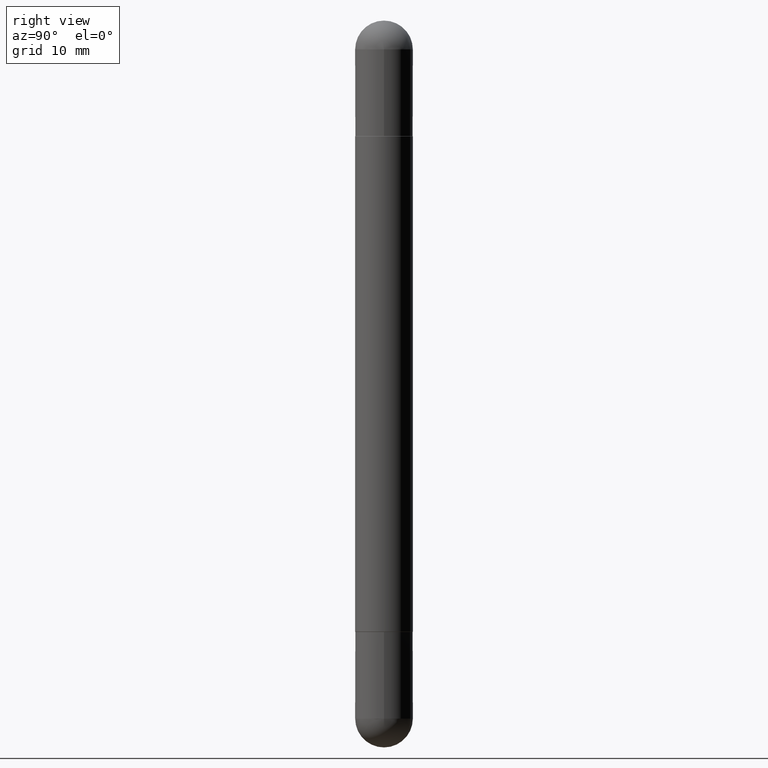
[diagram: clean part render]
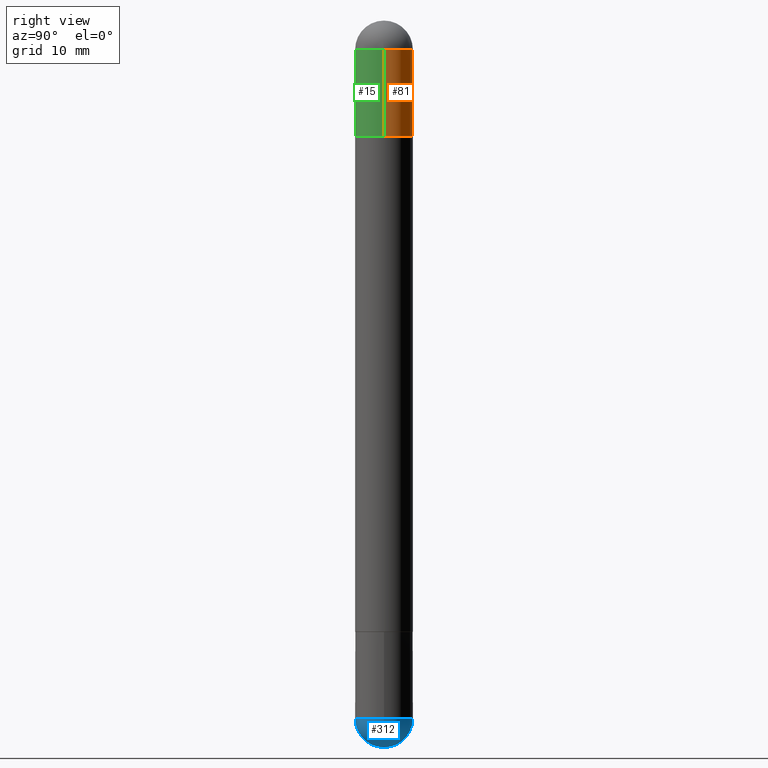
[diagram: same view with three faces highlighted in distinct colors, each labeled with its STEP entity id]
A machine part, right view with three faces highlighted in distinct colors.
Their STEP definitions:

[orange] entity #81 — the highlighted cylindrical surface (edge-blend (fillet) strip) has radius 2.5006 mm, axis along (-0, 0, -1).
#1 = DIRECTION ( 'NONE',  ( 1.000000000000000000, -6.982962677686273810E-15, 0.000000000000000000 ) ) ;
#39 = ORIENTED_EDGE ( 'NONE', *, *, #149, .F. ) ;
#54 = DIRECTION ( 'NONE',  ( 1.000000000000000000, -6.982962677686266711E-15, 0.000000000000000000 ) ) ;
#81 = ADVANCED_FACE ( 'NONE', ( #239 ), #479, .T. ) ;
#97 = AXIS2_PLACEMENT_3D ( 'NONE', #416, #598, #54 ) ;
#127 = AXIS2_PLACEMENT_3D ( 'NONE', #408, #647, #474 ) ;
#147 = EDGE_LOOP ( 'NONE', ( #39, #586, #335, #405, #495 ) ) ;
#149 = EDGE_CURVE ( 'NONE', #439, #744, #483, .T. ) ;
#152 = VECTOR ( 'NONE', #382, 39.37007874015748143 ) ;
#197 = CARTESIAN_POINT ( 'NONE',  ( 0.09845000000000000973, -8.488227569895042768E-15, -0.09844999999999987095 ) ) ;
#223 = CARTESIAN_POINT ( 'NONE',  ( 6.874726756182700483E-16, 0.09844999999999154427, -0.09844999999999953788 ) ) ;
#239 = FACE_OUTER_BOUND ( 'NONE', #147, .T. ) ;
#283 = CARTESIAN_POINT ( 'NONE',  ( 5.102715210985907397E-29, -7.285324961630108994E-15, -0.3936999999999999389 ) ) ;
#318 = LINE ( 'NONE', #753, #152 ) ;
#335 = ORIENTED_EDGE ( 'NONE', *, *, #813, .F. ) ;
#347 = VERTEX_POINT ( 'NONE', #197 ) ;
#351 = AXIS2_PLACEMENT_3D ( 'NONE', #283, #780, #444 ) ;
#355 = EDGE_CURVE ( 'NONE', #514, #744, #410, .T. ) ;
#382 = DIRECTION ( 'NONE',  ( -2.445468806185136877E-29, 3.491481338843145188E-15, -1.000000000000000000 ) ) ;
#405 = ORIENTED_EDGE ( 'NONE', *, *, #749, .T. ) ;
#408 = CARTESIAN_POINT ( 'NONE',  ( 5.824739876012068780E-29, -8.316184826923546689E-15, -0.09844999999999987095 ) ) ;
#410 = CIRCLE ( 'NONE', #351, 0.09844999999999999585 ) ;
#412 = CIRCLE ( 'NONE', #127, 0.09845000000000000973 ) ;
#416 = CARTESIAN_POINT ( 'NONE',  ( 0.000000000000000000, 0.000000000000000000, -2.480300000000000171 ) ) ;
#424 = AXIS2_PLACEMENT_3D ( 'NONE', #432, #679, #1 ) ;
#432 = CARTESIAN_POINT ( 'NONE',  ( 5.824739876012068780E-29, -8.316184826923546689E-15, -0.09844999999999987095 ) ) ;
#439 = VERTEX_POINT ( 'NONE', #643 ) ;
#444 = DIRECTION ( 'NONE',  ( 1.000000000000000000, -6.982962677686265922E-15, 0.000000000000000000 ) ) ;
#453 = CARTESIAN_POINT ( 'NONE',  ( 0.09844999999999999585, -7.972797637248321554E-15, -0.3936999999999999389 ) ) ;
#474 = DIRECTION ( 'NONE',  ( 1.000000000000000000, -6.982962677686273810E-15, 0.000000000000000000 ) ) ;
#479 = CYLINDRICAL_SURFACE ( 'NONE', #97, 0.09845000000000000973 ) ;
#483 = LINE ( 'NONE', #534, #667 ) ;
#495 = ORIENTED_EDGE ( 'NONE', *, *, #355, .T. ) ;
#514 = VERTEX_POINT ( 'NONE', #453 ) ;
#534 = CARTESIAN_POINT ( 'NONE',  ( -0.09845000000000000973, 6.754160278806074041E-16, -2.480300000000000171 ) ) ;
#547 = VERTEX_POINT ( 'NONE', #223 ) ;
#586 = ORIENTED_EDGE ( 'NONE', *, *, #688, .F. ) ;
#598 = DIRECTION ( 'NONE',  ( -2.445468806185136597E-29, 3.491481338843145583E-15, -1.000000000000000000 ) ) ;
#643 = CARTESIAN_POINT ( 'NONE',  ( -0.09845000000000000973, -7.125338866396221621E-15, -0.09844999999999987095 ) ) ;
#647 = DIRECTION ( 'NONE',  ( 2.445468806185136597E-29, -3.491481338843145583E-15, 1.000000000000000000 ) ) ;
#667 = VECTOR ( 'NONE', #727, 39.37007874015748143 ) ;
#679 = DIRECTION ( 'NONE',  ( 2.445468806185136597E-29, -3.491481338843145583E-15, 1.000000000000000000 ) ) ;
#688 = EDGE_CURVE ( 'NONE', #547, #439, #412, .T. ) ;
#727 = DIRECTION ( 'NONE',  ( -2.445468806185136877E-29, 3.491481338843145188E-15, -1.000000000000000000 ) ) ;
#744 = VERTEX_POINT ( 'NONE', #812 ) ;
#749 = EDGE_CURVE ( 'NONE', #347, #514, #318, .T. ) ;
#753 = CARTESIAN_POINT ( 'NONE',  ( 0.09845000000000000973, -6.874726756182130531E-16, -2.480300000000000171 ) ) ;
#770 = CIRCLE ( 'NONE', #424, 0.09845000000000000973 ) ;
#780 = DIRECTION ( 'NONE',  ( 2.445468806185136597E-29, -3.491481338843145583E-15, 1.000000000000000000 ) ) ;
#812 = CARTESIAN_POINT ( 'NONE',  ( -0.09844999999999999585, -7.125338866396220043E-15, -0.3936999999999999389 ) ) ;
#813 = EDGE_CURVE ( 'NONE', #347, #547, #770, .T. ) ;

[blue] entity #312 — the highlighted spherical surface has radius 2.5006 mm.
#13 = SPHERICAL_SURFACE ( 'NONE', #389, 0.09845000000000017626 ) ;
#19 = AXIS2_PLACEMENT_3D ( 'NONE', #58, #555, #384 ) ;
#33 = CARTESIAN_POINT ( 'NONE',  ( 5.824739876012068780E-29, -8.316184826923546689E-15, -2.381850000000000467 ) ) ;
#58 = CARTESIAN_POINT ( 'NONE',  ( 5.493620098098182533E-29, -8.790367195063598563E-15, -2.381850000000000467 ) ) ;
#62 = CIRCLE ( 'NONE', #507, 0.09845000000000000973 ) ;
#132 = DIRECTION ( 'NONE',  ( -2.445468806185136597E-29, 3.491481338843145583E-15, 1.000000000000000000 ) ) ;
#199 = EDGE_CURVE ( 'NONE', #658, #348, #62, .T. ) ;
#201 = DIRECTION ( 'NONE',  ( 1.000000000000000000, -6.982962677686273810E-15, 0.000000000000000000 ) ) ;
#240 = EDGE_CURVE ( 'NONE', #491, #658, #680, .T. ) ;
#264 = CIRCLE ( 'NONE', #524, 0.09845000000000017626 ) ;
#269 = DIRECTION ( 'NONE',  ( -1.000000000000000000, 6.982962677686265922E-15, -4.883557194083112901E-29 ) ) ;
#312 = ADVANCED_FACE ( 'NONE', ( #443 ), #13, .T. ) ;
#342 = CARTESIAN_POINT ( 'NONE',  ( -6.995293233557624958E-16, -0.09845000000000865559, -2.381850000000000023 ) ) ;
#348 = VERTEX_POINT ( 'NONE', #566 ) ;
#384 = DIRECTION ( 'NONE',  ( 6.982962677686265922E-15, 1.000000000000000000, 0.000000000000000000 ) ) ;
#389 = AXIS2_PLACEMENT_3D ( 'NONE', #624, #269, #761 ) ;
#411 = CARTESIAN_POINT ( 'NONE',  ( 5.493620098098182533E-29, -8.790367195063598563E-15, -2.381850000000000467 ) ) ;
#443 = FACE_OUTER_BOUND ( 'NONE', #631, .T. ) ;
#462 = ORIENTED_EDGE ( 'NONE', *, *, #648, .F. ) ;
#478 = DIRECTION ( 'NONE',  ( -1.000000000000000000, 7.105427357601001070E-15, -4.926315508542082329E-29 ) ) ;
#491 = VERTEX_POINT ( 'NONE', #342 ) ;
#507 = AXIS2_PLACEMENT_3D ( 'NONE', #33, #530, #789 ) ;
#508 = CIRCLE ( 'NONE', #19, 0.09845000000000017626 ) ;
#524 = AXIS2_PLACEMENT_3D ( 'NONE', #411, #478, #726 ) ;
#530 = DIRECTION ( 'NONE',  ( -2.445468806185136597E-29, 3.491481338843145583E-15, 1.000000000000000000 ) ) ;
#555 = DIRECTION ( 'NONE',  ( 1.000000000000000000, -6.982962677686265922E-15, 4.883557194083112340E-29 ) ) ;
#560 = CARTESIAN_POINT ( 'NONE',  ( 5.824739876012068780E-29, -8.316184826923546689E-15, -2.381850000000000467 ) ) ;
#566 = CARTESIAN_POINT ( 'NONE',  ( 6.874726756182700483E-16, 0.09844999999999154427, -2.381850000000000911 ) ) ;
#568 = ORIENTED_EDGE ( 'NONE', *, *, #240, .F. ) ;
#599 = VERTEX_POINT ( 'NONE', #717 ) ;
#611 = ORIENTED_EDGE ( 'NONE', *, *, #199, .F. ) ;
#624 = CARTESIAN_POINT ( 'NONE',  ( 5.493620098098182533E-29, -8.790367195063598563E-15, -2.381850000000000467 ) ) ;
#628 = AXIS2_PLACEMENT_3D ( 'NONE', #560, #132, #201 ) ;
#631 = EDGE_LOOP ( 'NONE', ( #462, #776, #611, #568 ) ) ;
#648 = EDGE_CURVE ( 'NONE', #599, #491, #264, .T. ) ;
#653 = CARTESIAN_POINT ( 'NONE',  ( 0.09845000000000000973, -8.488227569895042768E-15, -2.381850000000000467 ) ) ;
#658 = VERTEX_POINT ( 'NONE', #653 ) ;
#680 = CIRCLE ( 'NONE', #628, 0.09845000000000000973 ) ;
#717 = CARTESIAN_POINT ( 'NONE',  ( 5.738586058125595532E-29, -9.128075209003904434E-15, -2.480300000000001059 ) ) ;
#726 = DIRECTION ( 'NONE',  ( -7.105427357601001070E-15, -1.000000000000000000, 0.000000000000000000 ) ) ;
#761 = DIRECTION ( 'NONE',  ( 6.982962677686265922E-15, 1.000000000000000000, -2.774858297271973643E-15 ) ) ;
#776 = ORIENTED_EDGE ( 'NONE', *, *, #818, .T. ) ;
#789 = DIRECTION ( 'NONE',  ( 1.000000000000000000, -6.982962677686273810E-15, 0.000000000000000000 ) ) ;
#818 = EDGE_CURVE ( 'NONE', #599, #348, #508, .T. ) ;

[green] entity #15 — the highlighted cylindrical surface (edge-blend (fillet) strip) has radius 2.5006 mm, axis along (-0, 0, -1).
#4 = AXIS2_PLACEMENT_3D ( 'NONE', #802, #734, #112 ) ;
#8 = EDGE_CURVE ( 'NONE', #439, #349, #703, .T. ) ;
#15 = ADVANCED_FACE ( 'NONE', ( #302 ), #370, .T. ) ;
#50 = ORIENTED_EDGE ( 'NONE', *, *, #749, .F. ) ;
#53 = DIRECTION ( 'NONE',  ( 2.445468806185136597E-29, -3.491481338843145583E-15, 1.000000000000000000 ) ) ;
#64 = CIRCLE ( 'NONE', #693, 0.09844999999999999585 ) ;
#82 = CARTESIAN_POINT ( 'NONE',  ( 5.102715210985907397E-29, -7.285324961630108994E-15, -0.3936999999999999389 ) ) ;
#112 = DIRECTION ( 'NONE',  ( 1.000000000000000000, -6.982962677686273810E-15, 0.000000000000000000 ) ) ;
#145 = ORIENTED_EDGE ( 'NONE', *, *, #8, .F. ) ;
#149 = EDGE_CURVE ( 'NONE', #439, #744, #483, .T. ) ;
#152 = VECTOR ( 'NONE', #382, 39.37007874015748143 ) ;
#166 = AXIS2_PLACEMENT_3D ( 'NONE', #656, #53, #287 ) ;
#181 = DIRECTION ( 'NONE',  ( 1.000000000000000000, -6.982962677686266711E-15, 0.000000000000000000 ) ) ;
#197 = CARTESIAN_POINT ( 'NONE',  ( 0.09845000000000000973, -8.488227569895042768E-15, -0.09844999999999987095 ) ) ;
#238 = DIRECTION ( 'NONE',  ( -2.445468806185136597E-29, 3.491481338843145583E-15, -1.000000000000000000 ) ) ;
#250 = ORIENTED_EDGE ( 'NONE', *, *, #149, .T. ) ;
#287 = DIRECTION ( 'NONE',  ( 1.000000000000000000, -6.982962677686273810E-15, 0.000000000000000000 ) ) ;
#302 = FACE_OUTER_BOUND ( 'NONE', #529, .T. ) ;
#317 = ORIENTED_EDGE ( 'NONE', *, *, #641, .F. ) ;
#318 = LINE ( 'NONE', #753, #152 ) ;
#333 = DIRECTION ( 'NONE',  ( 2.445468806185136597E-29, -3.491481338843145583E-15, 1.000000000000000000 ) ) ;
#347 = VERTEX_POINT ( 'NONE', #197 ) ;
#349 = VERTEX_POINT ( 'NONE', #687 ) ;
#370 = CYLINDRICAL_SURFACE ( 'NONE', #578, 0.09845000000000000973 ) ;
#382 = DIRECTION ( 'NONE',  ( -2.445468806185136877E-29, 3.491481338843145188E-15, -1.000000000000000000 ) ) ;
#439 = VERTEX_POINT ( 'NONE', #643 ) ;
#452 = DIRECTION ( 'NONE',  ( 1.000000000000000000, -6.982962677686265922E-15, 0.000000000000000000 ) ) ;
#453 = CARTESIAN_POINT ( 'NONE',  ( 0.09844999999999999585, -7.972797637248321554E-15, -0.3936999999999999389 ) ) ;
#483 = LINE ( 'NONE', #534, #667 ) ;
#484 = CIRCLE ( 'NONE', #166, 0.09845000000000000973 ) ;
#502 = EDGE_CURVE ( 'NONE', #744, #514, #64, .T. ) ;
#514 = VERTEX_POINT ( 'NONE', #453 ) ;
#529 = EDGE_LOOP ( 'NONE', ( #145, #250, #666, #50, #317 ) ) ;
#534 = CARTESIAN_POINT ( 'NONE',  ( -0.09845000000000000973, 6.754160278806074041E-16, -2.480300000000000171 ) ) ;
#578 = AXIS2_PLACEMENT_3D ( 'NONE', #662, #238, #181 ) ;
#641 = EDGE_CURVE ( 'NONE', #349, #347, #484, .T. ) ;
#643 = CARTESIAN_POINT ( 'NONE',  ( -0.09845000000000000973, -7.125338866396221621E-15, -0.09844999999999987095 ) ) ;
#656 = CARTESIAN_POINT ( 'NONE',  ( 5.824739876012068780E-29, -8.316184826923546689E-15, -0.09844999999999987095 ) ) ;
#662 = CARTESIAN_POINT ( 'NONE',  ( 0.000000000000000000, 0.000000000000000000, -2.480300000000000171 ) ) ;
#666 = ORIENTED_EDGE ( 'NONE', *, *, #502, .T. ) ;
#667 = VECTOR ( 'NONE', #727, 39.37007874015748143 ) ;
#687 = CARTESIAN_POINT ( 'NONE',  ( -6.754160278805513950E-16, -0.09845000000000865559, -0.09845000000000021789 ) ) ;
#693 = AXIS2_PLACEMENT_3D ( 'NONE', #82, #333, #452 ) ;
#703 = CIRCLE ( 'NONE', #4, 0.09845000000000000973 ) ;
#727 = DIRECTION ( 'NONE',  ( -2.445468806185136877E-29, 3.491481338843145188E-15, -1.000000000000000000 ) ) ;
#734 = DIRECTION ( 'NONE',  ( 2.445468806185136597E-29, -3.491481338843145583E-15, 1.000000000000000000 ) ) ;
#744 = VERTEX_POINT ( 'NONE', #812 ) ;
#749 = EDGE_CURVE ( 'NONE', #347, #514, #318, .T. ) ;
#753 = CARTESIAN_POINT ( 'NONE',  ( 0.09845000000000000973, -6.874726756182130531E-16, -2.480300000000000171 ) ) ;
#802 = CARTESIAN_POINT ( 'NONE',  ( 5.824739876012068780E-29, -8.316184826923546689E-15, -0.09844999999999987095 ) ) ;
#812 = CARTESIAN_POINT ( 'NONE',  ( -0.09844999999999999585, -7.125338866396220043E-15, -0.3936999999999999389 ) ) ;